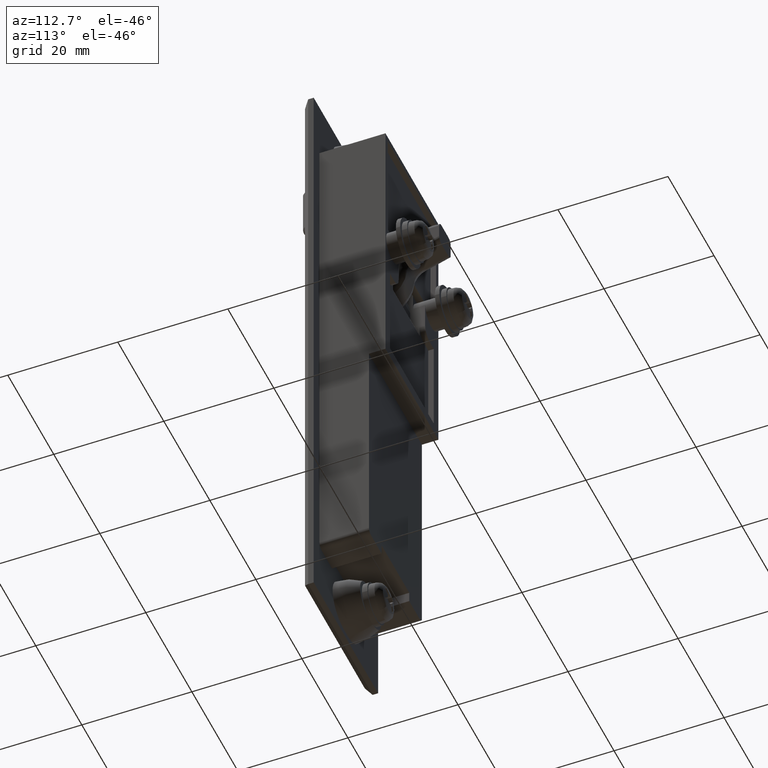
[diagram: clean part render]
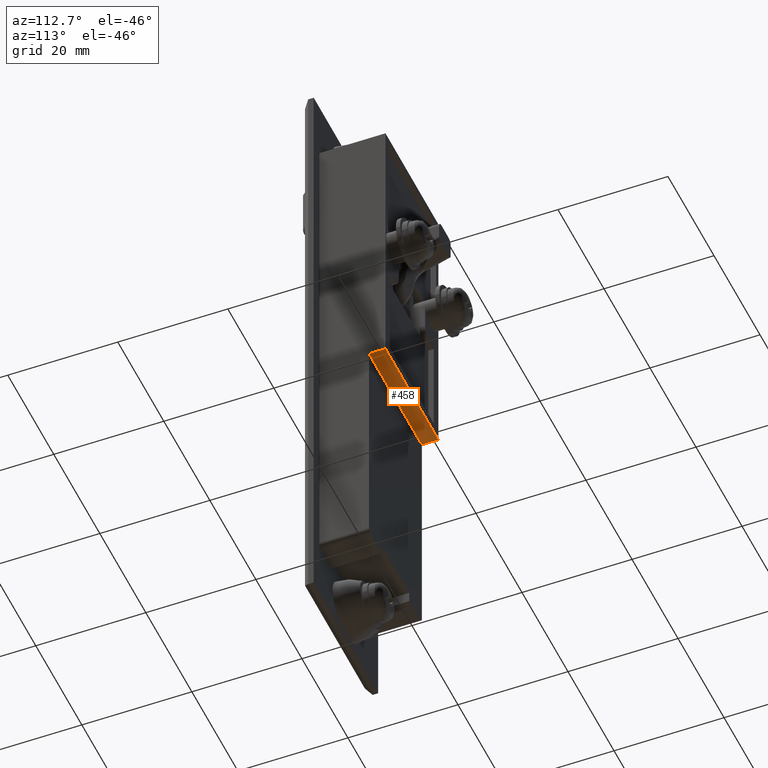
[diagram: same view with one face highlighted and labeled with its STEP entity id]
A machine part, auxiliary view. The second image highlights one B-rep face of the part: STEP entity #458.
In plain terms, the highlighted planar face has unit normal (0, 0, -1).
Its self-contained STEP definition (entity closure, byte-faithful):
#458=ADVANCED_FACE('',(#1941),#1940,.T.);
#1940=PLANE('',#4144);
#1941=FACE_OUTER_BOUND('',#4145,.T.);
#4141=CARTESIAN_POINT('',(3.00000000000E-01,-1.38000000000E+01,-2.69998000000E+01));
#4142=DIRECTION('',(0.00000000000E+00,0.00000000000E+00,-1.00000000000E+00));
#4143=DIRECTION('',(-1.00000000000E+00,0.00000000000E+00,0.00000000000E+00));
#4144=AXIS2_PLACEMENT_3D('',#4141,#4142,#4143);
#4145=EDGE_LOOP('',(#5630,#5631,#5632,#5633));
#5630=ORIENTED_EDGE('',*,*,#6825,.F.);
#5631=ORIENTED_EDGE('',*,*,#6818,.F.);
#5632=ORIENTED_EDGE('',*,*,#6826,.T.);
#5633=ORIENTED_EDGE('',*,*,#6827,.T.);
#6818=EDGE_CURVE('',#9995,#10002,#10003,.T.);
#6825=EDGE_CURVE('',#10002,#10049,#10050,.T.);
#6826=EDGE_CURVE('',#9995,#10056,#10057,.T.);
#6827=EDGE_CURVE('',#10056,#10049,#10063,.T.);
#9995=VERTEX_POINT('',#13809);
#10002=VERTEX_POINT('',#13813);
#10003=LINE('',#13814,#13815);
#10049=VERTEX_POINT('',#13839);
#10050=LINE('',#13840,#13841);
#10056=VERTEX_POINT('',#13843);
#10057=LINE('',#13844,#13845);
#10063=LINE('',#13847,#13848);
#13809=CARTESIAN_POINT('',(-3.00000000000E+00,1.15000000000E+01,-2.69998000000E+01));
#13813=CARTESIAN_POINT('',(-3.00000000000E+00,-1.15000000000E+01,-2.69998000000E+01));
#13814=CARTESIAN_POINT('',(-3.00000000000E+00,1.15000000000E+01,-2.69998000000E+01));
#13815=VECTOR('',#13816,2.30000000000E+01);
#13816=DIRECTION('',(0.00000000000E+00,-1.00000000000E+00,0.00000000000E+00));
#13839=CARTESIAN_POINT('',(0.00000000000E+00,-1.15000000000E+01,-2.69998000000E+01));
#13840=CARTESIAN_POINT('',(-3.00000000000E+00,-1.15000000000E+01,-2.69998000000E+01));
#13841=VECTOR('',#13842,3.00000000000E+00);
#13842=DIRECTION('',(1.00000000000E+00,0.00000000000E+00,0.00000000000E+00));
#13843=CARTESIAN_POINT('',(0.00000000000E+00,1.15000000000E+01,-2.69998000000E+01));
#13844=CARTESIAN_POINT('',(-3.00000000000E+00,1.15000000000E+01,-2.69998000000E+01));
#13845=VECTOR('',#13846,3.00000000000E+00);
#13846=DIRECTION('',(1.00000000000E+00,0.00000000000E+00,0.00000000000E+00));
#13847=CARTESIAN_POINT('',(0.00000000000E+00,1.15000000000E+01,-2.69998000000E+01));
#13848=VECTOR('',#13849,2.30000000000E+01);
#13849=DIRECTION('',(0.00000000000E+00,-1.00000000000E+00,0.00000000000E+00));